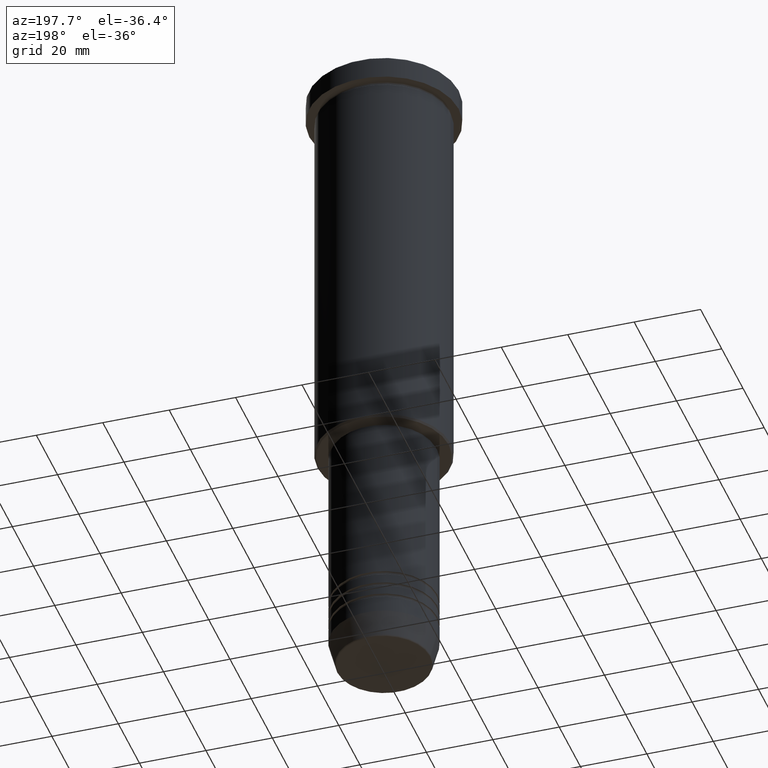
[diagram: clean part render]
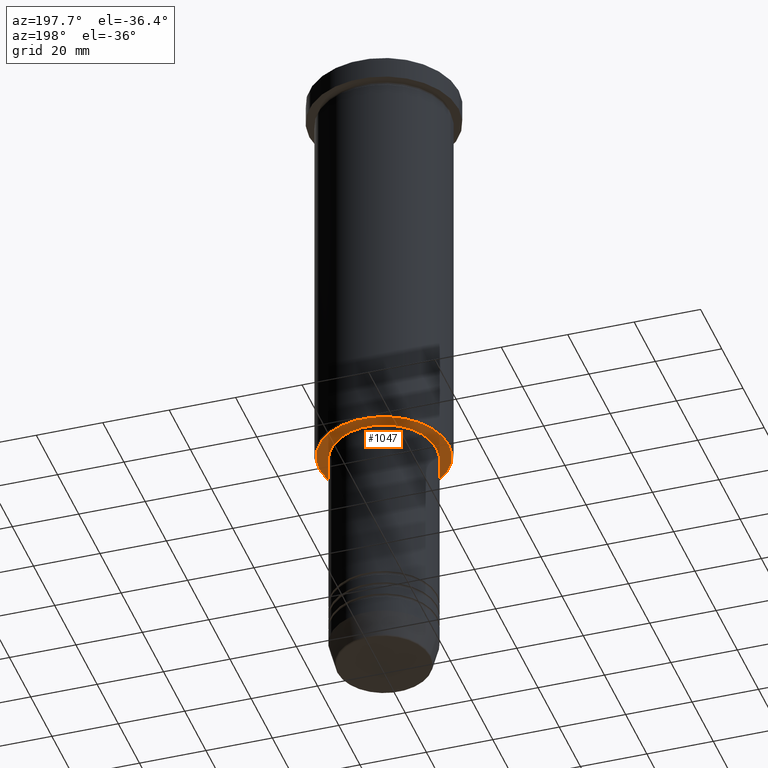
[diagram: same view with one face highlighted and labeled with its STEP entity id]
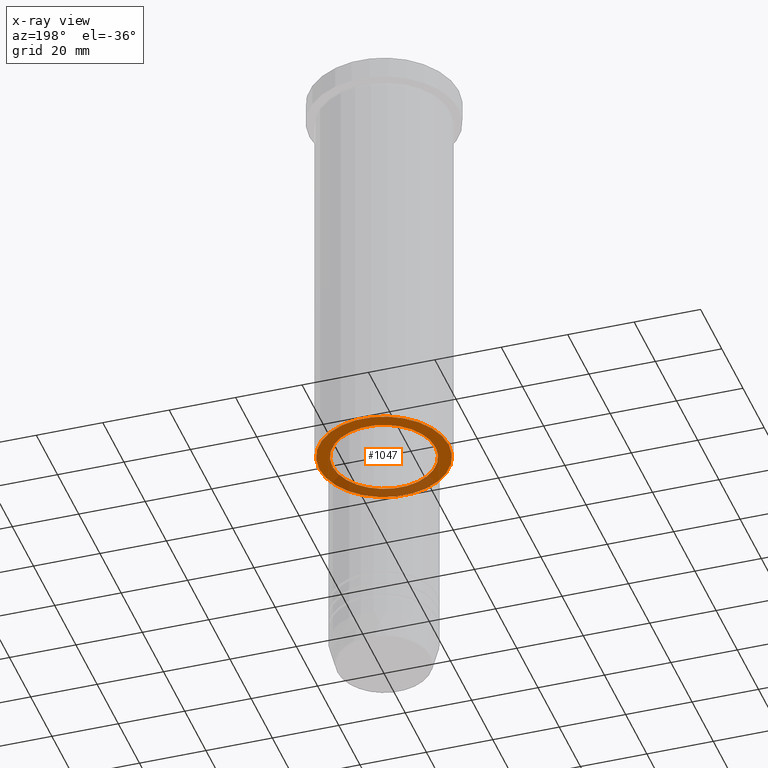
[diagram: x-ray of the same camera — body ghosted, the highlighted face saturated]
A machine part, auxiliary view. The second image highlights one B-rep face of the part: STEP entity #1047.
The next image is the same camera in x-ray: the body ghosted, the highlighted face saturated — about 29% of this face is hidden behind the body in this view.
In plain terms, the highlighted planar face has unit normal (0, 0, -1).
Its self-contained STEP definition (entity closure, byte-faithful):
#58 = EDGE_CURVE ( 'NONE', #167, #177, #1012, .T. ) ;
#60 = EDGE_LOOP ( 'NONE', ( #1170, #1177 ) ) ;
#112 = FACE_BOUND ( 'NONE', #609, .T. ) ;
#115 = ORIENTED_EDGE ( 'NONE', *, *, #58, .T. ) ;
#131 = CARTESIAN_POINT ( 'NONE',  ( 0.000000000000000000, 0.000000000000000000, -126.0000000000000000 ) ) ;
#137 = AXIS2_PLACEMENT_3D ( 'NONE', #1021, #206, #687 ) ;
#167 = VERTEX_POINT ( 'NONE', #538 ) ;
#170 = DIRECTION ( 'NONE',  ( -1.000000000000000000, 0.000000000000000000, 0.000000000000000000 ) ) ;
#177 = VERTEX_POINT ( 'NONE', #528 ) ;
#206 = DIRECTION ( 'NONE',  ( -0.000000000000000000, -0.000000000000000000, 1.000000000000000000 ) ) ;
#214 = AXIS2_PLACEMENT_3D ( 'NONE', #771, #1119, #782 ) ;
#270 = DIRECTION ( 'NONE',  ( -1.000000000000000000, 0.000000000000000000, -0.000000000000000000 ) ) ;
#283 = CIRCLE ( 'NONE', #214, 19.49999999999998934 ) ;
#299 = DIRECTION ( 'NONE',  ( 1.000000000000000000, 0.000000000000000000, 0.000000000000000000 ) ) ;
#307 = DIRECTION ( 'NONE',  ( -0.000000000000000000, -0.000000000000000000, 1.000000000000000000 ) ) ;
#384 = EDGE_CURVE ( 'NONE', #1080, #444, #768, .T. ) ;
#412 = CIRCLE ( 'NONE', #640, 15.50000000000000000 ) ;
#444 = VERTEX_POINT ( 'NONE', #584 ) ;
#464 = CARTESIAN_POINT ( 'NONE',  ( 19.49999999999998934, 0.000000000000000000, -126.0000000000000000 ) ) ;
#483 = DIRECTION ( 'NONE',  ( 0.000000000000000000, 0.000000000000000000, -1.000000000000000000 ) ) ;
#501 = EDGE_CURVE ( 'NONE', #177, #167, #412, .T. ) ;
#507 = AXIS2_PLACEMENT_3D ( 'NONE', #645, #483, #270 ) ;
#528 = CARTESIAN_POINT ( 'NONE',  ( 15.50000000000000000, 0.000000000000000000, -126.0000000000000000 ) ) ;
#538 = CARTESIAN_POINT ( 'NONE',  ( -15.50000000000000000, 1.898202538678397557E-15, -126.0000000000000000 ) ) ;
#564 = DIRECTION ( 'NONE',  ( 0.000000000000000000, 0.000000000000000000, -1.000000000000000000 ) ) ;
#584 = CARTESIAN_POINT ( 'NONE',  ( -19.49999999999998934, 2.418677428316021937E-15, -126.0000000000000000 ) ) ;
#609 = EDGE_LOOP ( 'NONE', ( #806, #115 ) ) ;
#640 = AXIS2_PLACEMENT_3D ( 'NONE', #131, #307, #299 ) ;
#645 = CARTESIAN_POINT ( 'NONE',  ( 0.000000000000000000, 20.00000000000000355, -126.0000000000000000 ) ) ;
#687 = DIRECTION ( 'NONE',  ( 1.000000000000000000, 0.000000000000000000, 0.000000000000000000 ) ) ;
#768 = CIRCLE ( 'NONE', #786, 19.49999999999998934 ) ;
#771 = CARTESIAN_POINT ( 'NONE',  ( 0.000000000000000000, 0.000000000000000000, -126.0000000000000000 ) ) ;
#782 = DIRECTION ( 'NONE',  ( -1.000000000000000000, 0.000000000000000000, 0.000000000000000000 ) ) ;
#786 = AXIS2_PLACEMENT_3D ( 'NONE', #989, #564, #170 ) ;
#806 = ORIENTED_EDGE ( 'NONE', *, *, #501, .T. ) ;
#843 = FACE_OUTER_BOUND ( 'NONE', #60, .T. ) ;
#852 = PLANE ( 'NONE',  #507 ) ;
#989 = CARTESIAN_POINT ( 'NONE',  ( 0.000000000000000000, 0.000000000000000000, -126.0000000000000000 ) ) ;
#1012 = CIRCLE ( 'NONE', #137, 15.50000000000000000 ) ;
#1021 = CARTESIAN_POINT ( 'NONE',  ( 0.000000000000000000, 0.000000000000000000, -126.0000000000000000 ) ) ;
#1047 = ADVANCED_FACE ( 'NONE', ( #843, #112 ), #852, .T. ) ;
#1080 = VERTEX_POINT ( 'NONE', #464 ) ;
#1086 = EDGE_CURVE ( 'NONE', #444, #1080, #283, .T. ) ;
#1119 = DIRECTION ( 'NONE',  ( 0.000000000000000000, 0.000000000000000000, -1.000000000000000000 ) ) ;
#1170 = ORIENTED_EDGE ( 'NONE', *, *, #384, .T. ) ;
#1177 = ORIENTED_EDGE ( 'NONE', *, *, #1086, .T. ) ;